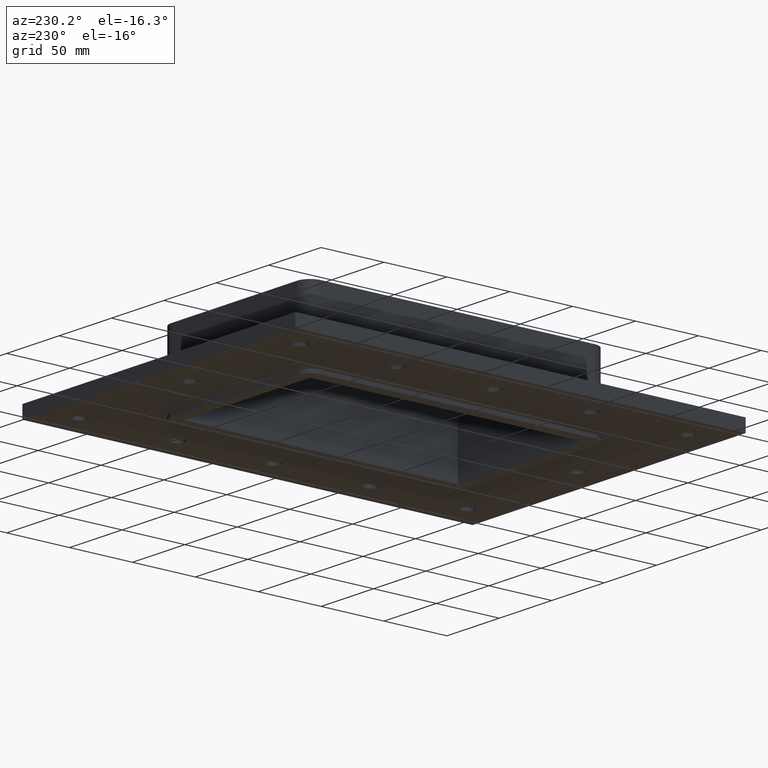
[diagram: clean part render]
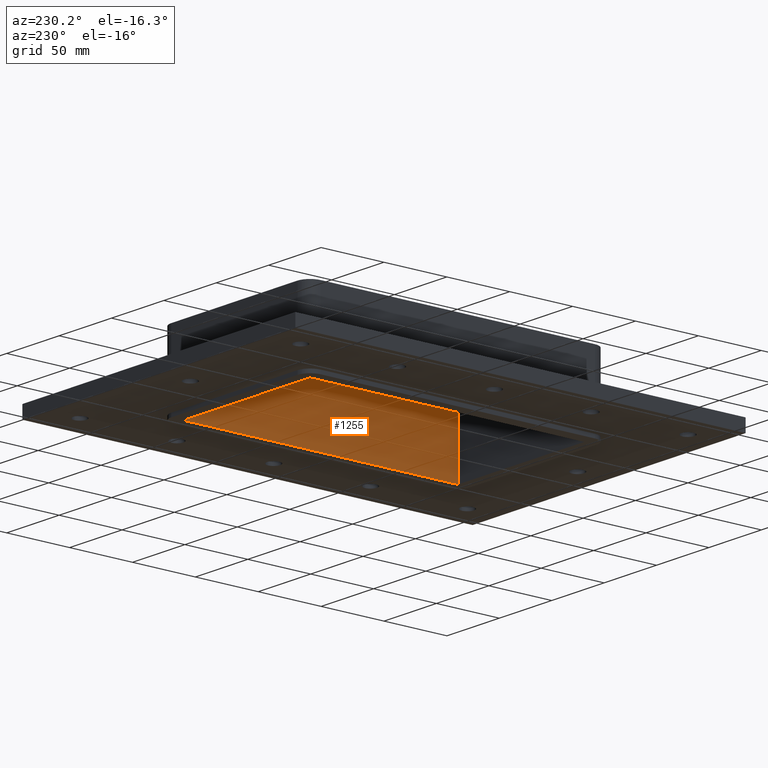
[diagram: same view with one face highlighted and labeled with its STEP entity id]
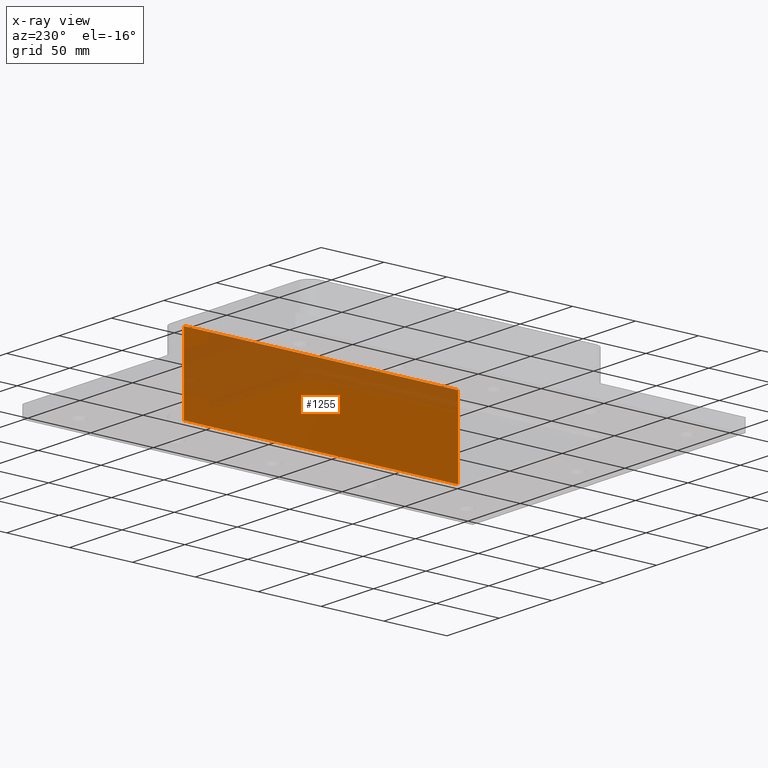
[diagram: x-ray of the same camera — body ghosted, the highlighted face saturated]
A machine part, auxiliary view. The second image highlights one B-rep face of the part: STEP entity #1255.
The next image is the same camera in x-ray: the body ghosted, the highlighted face saturated — about 38% of this face is hidden behind the body in this view.
In plain terms, the highlighted planar face has unit normal (1, 0, 0).
Its self-contained STEP definition (entity closure, byte-faithful):
#1034=CARTESIAN_POINT('',(60.250000000000057,-109.00000000000261,-30.0));
#1035=VERTEX_POINT('',#1034);
#1036=CARTESIAN_POINT('',(60.250000000000014,108.99999999999739,-30.0));
#1037=VERTEX_POINT('',#1036);
#1038=CARTESIAN_POINT('',(60.250000000000057,-109.00000000000264,-30.0));
#1039=DIRECTION('',(0.0,1.0,0.0));
#1040=VECTOR('',#1039,218.00000000000003);
#1041=LINE('',#1038,#1040);
#1042=EDGE_CURVE('',#1035,#1037,#1041,.T.);
#1215=CARTESIAN_POINT('',(60.250000000000057,-109.00000000000261,30.0));
#1216=VERTEX_POINT('',#1215);
#1223=CARTESIAN_POINT('',(60.250000000000057,-109.00000000000261,30.0));
#1224=DIRECTION('',(0.0,0.0,-1.0));
#1225=VECTOR('',#1224,60.0);
#1226=LINE('',#1223,#1225);
#1227=EDGE_CURVE('',#1216,#1035,#1226,.T.);
#1232=CARTESIAN_POINT('',(60.250000000000014,108.99999999999739,30.0));
#1233=DIRECTION('',(1.0,0.0,0.0));
#1234=DIRECTION('',(0.0,-1.0,0.0));
#1235=AXIS2_PLACEMENT_3D('',#1232,#1233,#1234);
#1236=PLANE('',#1235);
#1237=ORIENTED_EDGE('',*,*,#1042,.F.);
#1238=ORIENTED_EDGE('',*,*,#1227,.F.);
#1239=CARTESIAN_POINT('',(60.250000000000014,108.99999999999739,30.0));
#1240=VERTEX_POINT('',#1239);
#1241=CARTESIAN_POINT('',(60.250000000000007,108.99999999999739,30.0));
#1242=DIRECTION('',(0.0,-1.0,0.0));
#1243=VECTOR('',#1242,218.00000000000003);
#1244=LINE('',#1241,#1243);
#1245=EDGE_CURVE('',#1240,#1216,#1244,.T.);
#1246=ORIENTED_EDGE('',*,*,#1245,.F.);
#1247=CARTESIAN_POINT('',(60.250000000000014,108.99999999999739,30.0));
#1248=DIRECTION('',(0.0,0.0,-1.0));
#1249=VECTOR('',#1248,60.0);
#1250=LINE('',#1247,#1249);
#1251=EDGE_CURVE('',#1240,#1037,#1250,.T.);
#1252=ORIENTED_EDGE('',*,*,#1251,.T.);
#1253=EDGE_LOOP('',(#1237,#1238,#1246,#1252));
#1254=FACE_OUTER_BOUND('',#1253,.T.);
#1255=ADVANCED_FACE('',(#1254),#1236,.F.);